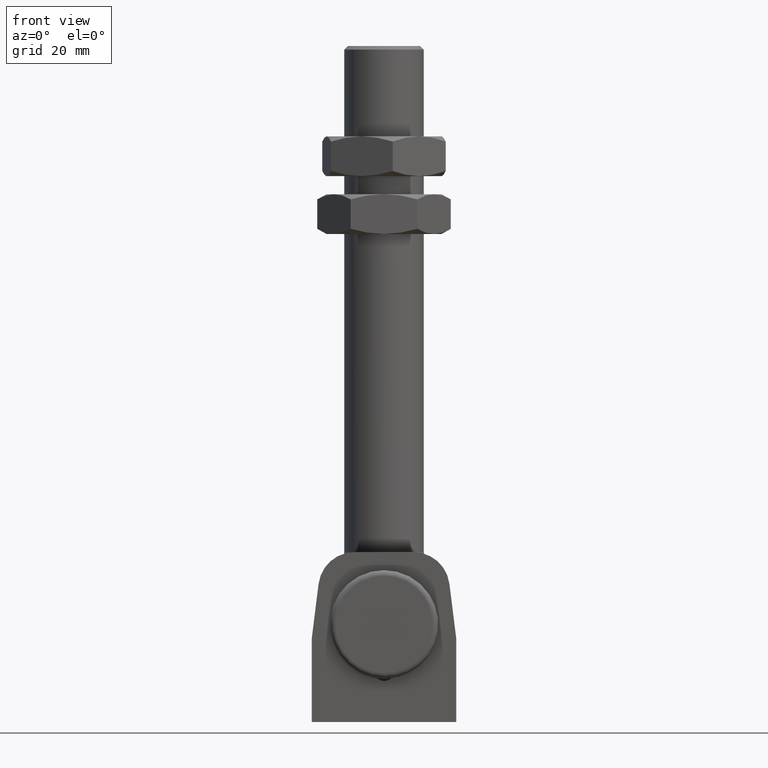
[diagram: clean part render]
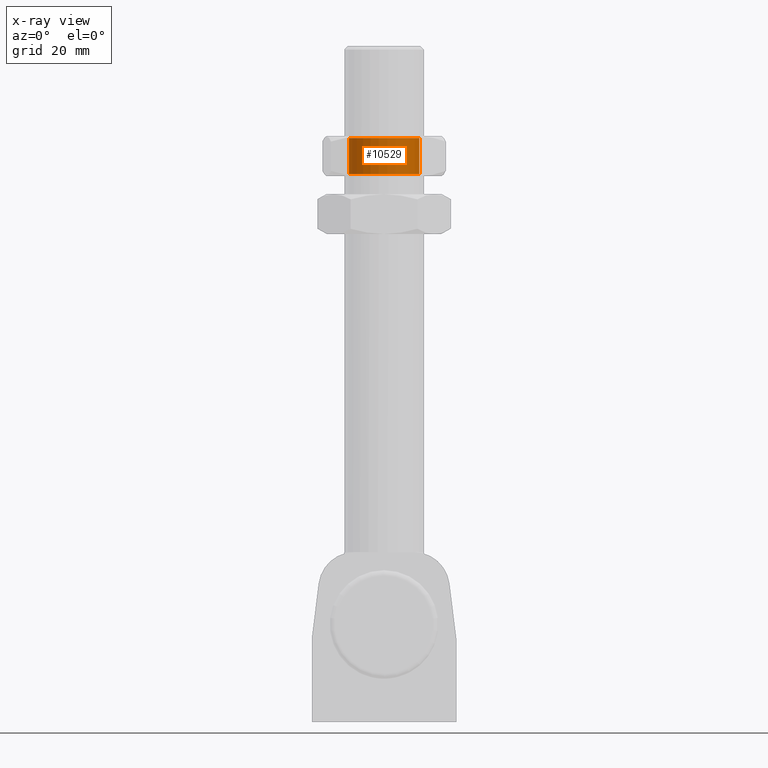
[diagram: x-ray — body ghosted, one internal face saturated and labeled with its STEP entity id]
A machine part, front view, then the same camera in x-ray: the body is ghosted and one INTERNAL B-rep face — a face not visible from any outside direction — is saturated and labeled: STEP entity #10529.
In plain terms, the highlighted cylindrical surface (bore or boss wall) has radius 9.75 mm, axis along (0, 0, -1).
Its self-contained STEP definition (entity closure, byte-faithful):
#872 = CARTESIAN_POINT ( 'NONE',  ( 0.000000000000000000, -4.999999999999990230, 9.749999999999998224 ) ) ;
#1002 = AXIS2_PLACEMENT_3D ( 'NONE', #6469, #14531, #3060 ) ;
#2864 = EDGE_CURVE ( 'NONE', #4069, #4069, #12047, .T. ) ;
#3060 = DIRECTION ( 'NONE',  ( 0.000000000000000000, 0.000000000000000000, 1.000000000000000000 ) ) ;
#3747 = FACE_OUTER_BOUND ( 'NONE', #9363, .T. ) ;
#4069 = VERTEX_POINT ( 'NONE', #872 ) ;
#4461 = CARTESIAN_POINT ( 'NONE',  ( 0.000000000000000000, 5.000000000000002665, 9.749999999999998224 ) ) ;
#4657 = AXIS2_PLACEMENT_3D ( 'NONE', #4842, #8224, #11733 ) ;
#4842 = CARTESIAN_POINT ( 'NONE',  ( 0.000000000000000000, 5.500000000000000000, 0.000000000000000000 ) ) ;
#6086 = FACE_OUTER_BOUND ( 'NONE', #8024, .T. ) ;
#6469 = CARTESIAN_POINT ( 'NONE',  ( 0.000000000000000000, 5.000000000000002665, 0.000000000000000000 ) ) ;
#6970 = CYLINDRICAL_SURFACE ( 'NONE', #4657, 9.749999999999998224 ) ;
#7338 = DIRECTION ( 'NONE',  ( 0.000000000000000000, 0.000000000000000000, 1.000000000000000000 ) ) ;
#8024 = EDGE_LOOP ( 'NONE', ( #9563 ) ) ;
#8175 = CIRCLE ( 'NONE', #1002, 9.749999999999998224 ) ;
#8224 = DIRECTION ( 'NONE',  ( -0.000000000000000000, 1.000000000000000000, -0.000000000000000000 ) ) ;
#9014 = AXIS2_PLACEMENT_3D ( 'NONE', #9525, #14285, #7338 ) ;
#9363 = EDGE_LOOP ( 'NONE', ( #13662 ) ) ;
#9525 = CARTESIAN_POINT ( 'NONE',  ( 0.000000000000000000, -4.999999999999990230, 0.000000000000000000 ) ) ;
#9563 = ORIENTED_EDGE ( 'NONE', *, *, #12898, .T. ) ;
#9988 = VERTEX_POINT ( 'NONE', #4461 ) ;
#10529 = ADVANCED_FACE ( 'NONE', ( #6086, #3747 ), #6970, .F. ) ;
#11733 = DIRECTION ( 'NONE',  ( 0.000000000000000000, 0.000000000000000000, 1.000000000000000000 ) ) ;
#12047 = CIRCLE ( 'NONE', #9014, 9.749999999999998224 ) ;
#12898 = EDGE_CURVE ( 'NONE', #9988, #9988, #8175, .T. ) ;
#13662 = ORIENTED_EDGE ( 'NONE', *, *, #2864, .T. ) ;
#14285 = DIRECTION ( 'NONE',  ( -0.000000000000000000, -1.000000000000000000, -0.000000000000000000 ) ) ;
#14531 = DIRECTION ( 'NONE',  ( 0.000000000000000000, 1.000000000000000000, 0.000000000000000000 ) ) ;